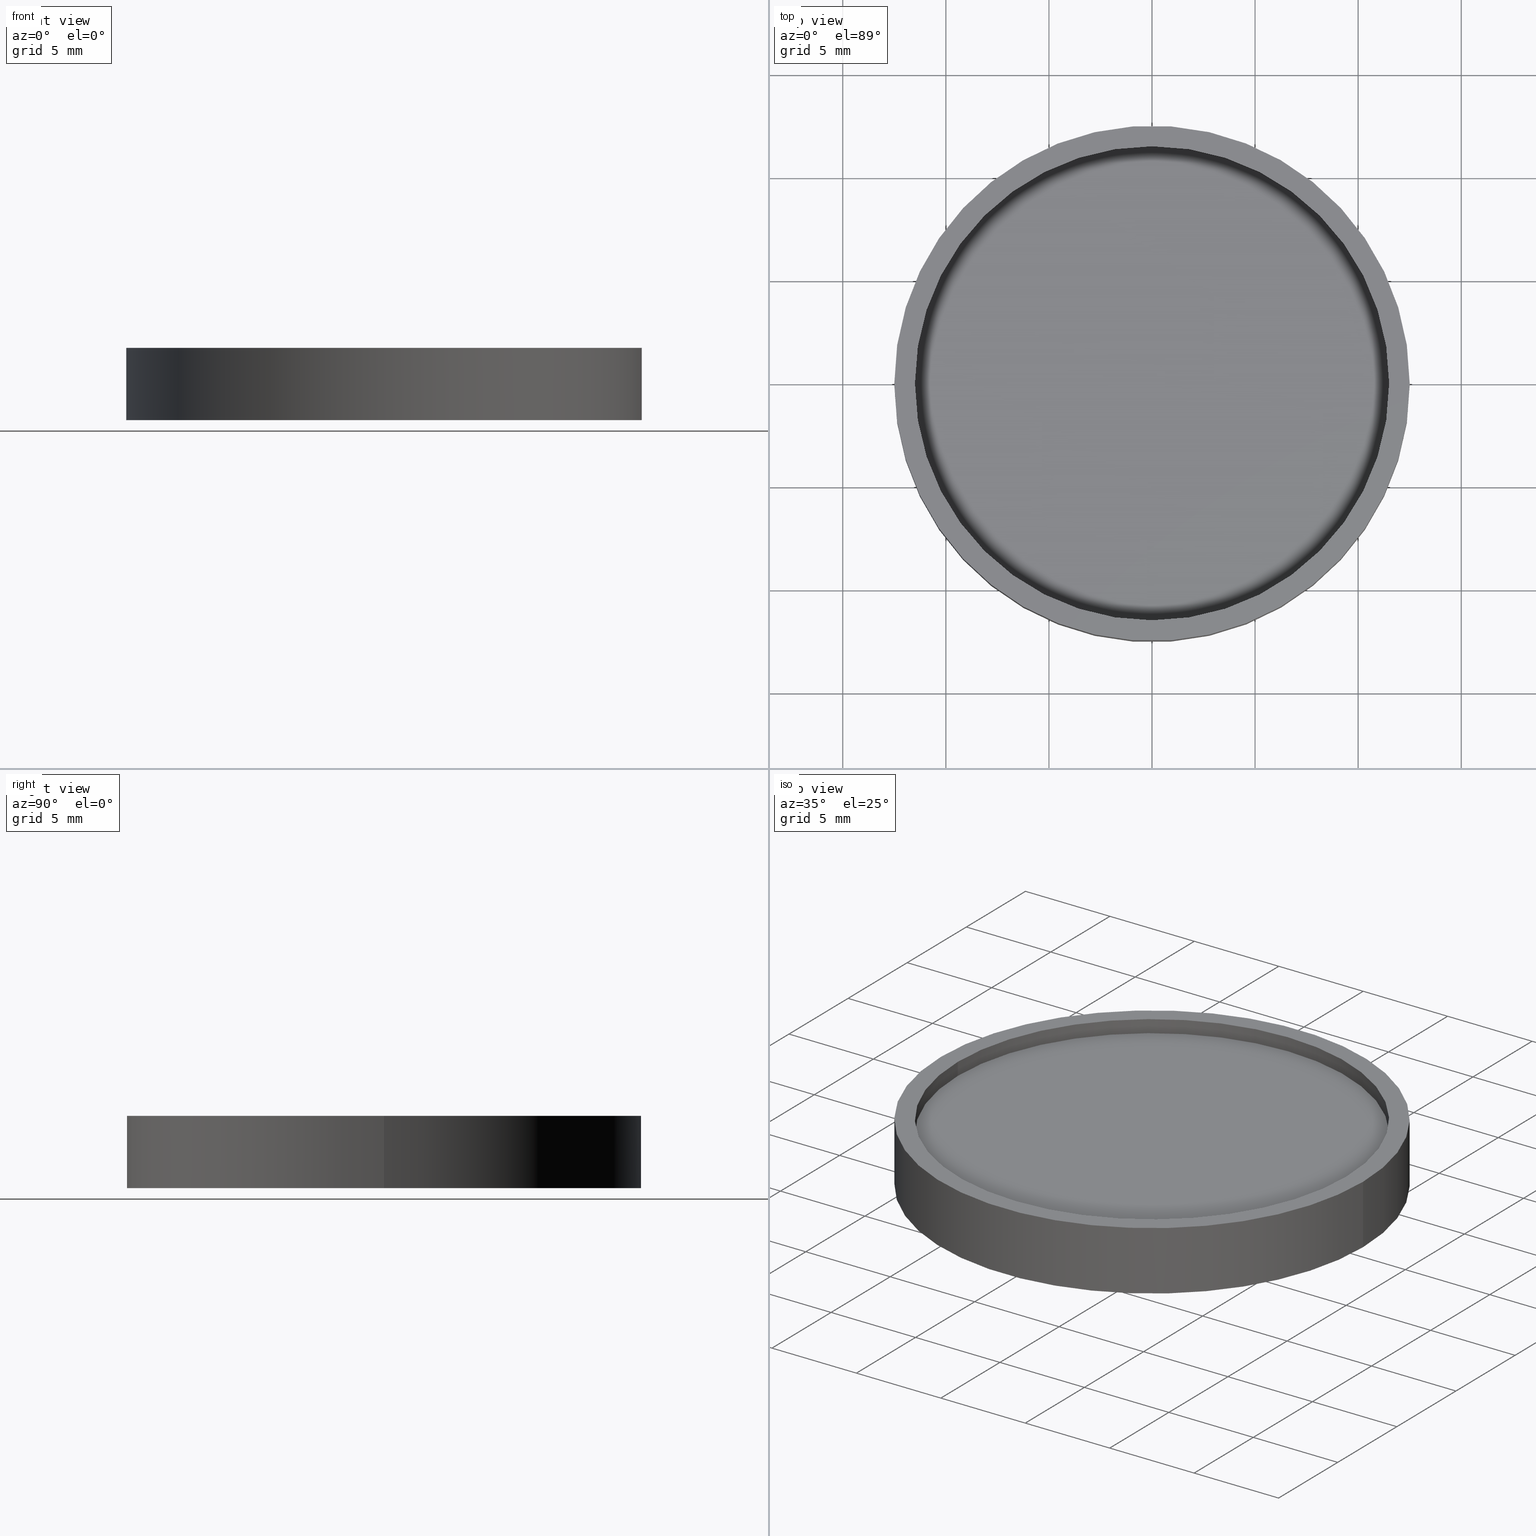
[diagram: canonical four-view strip — front | top / right | iso, engineering-drawing reading convention]
A machine part, canonical four-view strip (front | top / right | iso — engineering-drawing reading convention). The complete STEP part file that produces these views, byte-faithful:
ISO-10303-21;
HEADER;
FILE_DESCRIPTION (( 'STEP AP214' ),
    '1' );
FILE_NAME ('GNIF-045-535-D25.STEP',
    '2024-08-13T06:42:11',
    ( 'Windows User' ),
    ( 'P R C' ),
    'SwSTEP 2.0',
    'SolidWorks 2022',
    '' );
FILE_SCHEMA (( 'AUTOMOTIVE_DESIGN' ));
ENDSEC;

DATA;
#1 = EDGE_CURVE ( 'NONE', #127, #340, #187, .T. ) ;
#2 = AXIS2_PLACEMENT_3D ( 'NONE', #262, #266, #101 ) ;
#3 = CYLINDRICAL_SURFACE ( 'NONE', #248, 12.50000000000000000 ) ;
#4 =( GEOMETRIC_REPRESENTATION_CONTEXT ( 3 ) GLOBAL_UNCERTAINTY_ASSIGNED_CONTEXT ( ( #393 ) ) GLOBAL_UNIT_ASSIGNED_CONTEXT ( ( #354, #299, #359 ) ) REPRESENTATION_CONTEXT ( 'NONE', 'WORKASPACE' ) );
#5 = SURFACE_STYLE_FILL_AREA ( #357 ) ;
#6 = SURFACE_STYLE_FILL_AREA ( #325 ) ;
#7 = CIRCLE ( 'NONE', #52, 11.50000000000000000 ) ;
#8 = AXIS2_PLACEMENT_3D ( 'NONE', #204, #136, #351 ) ;
#9 =( NAMED_UNIT ( * ) PLANE_ANGLE_UNIT ( ) SI_UNIT ( $, .RADIAN. ) );
#10 = SURFACE_STYLE_FILL_AREA ( #46 ) ;
#11 = PRODUCT_DEFINITION_CONTEXT ( 'detailed design', #419, 'design' ) ;
#12 = FACE_BOUND ( 'NONE', #349, .T. ) ;
#13 = PRESENTATION_LAYER_ASSIGNMENT (  '', '', ( #143 ) ) ;
#14 = SURFACE_SIDE_STYLE ('',( #120 ) ) ;
#15 = MECHANICAL_DESIGN_GEOMETRIC_PRESENTATION_REPRESENTATION (  '', ( #356 ), #132 ) ;
#16 = DIRECTION ( 'NONE',  ( 1.000000000000000000, 0.000000000000000000, 0.000000000000000000 ) ) ;
#17 = DIRECTION ( 'NONE',  ( 1.000000000000000000, 0.000000000000000000, 0.000000000000000000 ) ) ;
#18 = EDGE_CURVE ( 'NONE', #105, #344, #168, .T. ) ;
#19 = CARTESIAN_POINT ( 'NONE',  ( 0.000000000000000000, 0.000000000000000000, 3.500000000000000000 ) ) ;
#20 = COLOUR_RGB ( '',1.000000000000000000, 1.000000000000000000, 1.000000000000000000 ) ;
#21 =( LENGTH_UNIT ( ) NAMED_UNIT ( * ) SI_UNIT ( .MILLI., .METRE. ) );
#22 = SURFACE_SIDE_STYLE ('',( #10 ) ) ;
#23 = APPLICATION_PROTOCOL_DEFINITION ( 'draft international standard', 'automotive_design', 1998, #114 ) ;
#24 = AXIS2_PLACEMENT_3D ( 'NONE', #45, #40, #133 ) ;
#25 = ORIENTED_EDGE ( 'NONE', *, *, #75, .T. ) ;
#26 = VECTOR ( 'NONE', #238, 1000.000000000000000 ) ;
#27 = ORIENTED_EDGE ( 'NONE', *, *, #32, .T. ) ;
#28 = CARTESIAN_POINT ( 'NONE',  ( 0.000000000000000000, 0.000000000000000000, 2.750000000000000000 ) ) ;
#29 = ORIENTED_EDGE ( 'NONE', *, *, #106, .T. ) ;
#30 = DIRECTION ( 'NONE',  ( 0.000000000000000000, 0.000000000000000000, 1.000000000000000000 ) ) ;
#31 = CARTESIAN_POINT ( 'NONE',  ( -12.50000000000000000, 0.000000000000000000, 3.500000000000000000 ) ) ;
#32 = EDGE_CURVE ( 'NONE', #344, #105, #148, .T. ) ;
#33 = VECTOR ( 'NONE', #306, 1000.000000000000000 ) ;
#34 = MECHANICAL_DESIGN_GEOMETRIC_PRESENTATION_REPRESENTATION (  '', ( #263 ), #270 ) ;
#35 = SURFACE_STYLE_USAGE ( .BOTH. , #192 ) ;
#36 = PLANE ( 'NONE',  #165 ) ;
#37 = MECHANICAL_DESIGN_GEOMETRIC_PRESENTATION_REPRESENTATION (  '', ( #143 ), #260 ) ;
#38 = PRODUCT_RELATED_PRODUCT_CATEGORY ( 'part', '', ( #342 ) ) ;
#39 = AXIS2_PLACEMENT_3D ( 'NONE', #278, #157, #282 ) ;
#40 = DIRECTION ( 'NONE',  ( 0.000000000000000000, 0.000000000000000000, -1.000000000000000000 ) ) ;
#41 = SURFACE_STYLE_USAGE ( .BOTH. , #391 ) ;
#42 = CARTESIAN_POINT ( 'NONE',  ( 0.000000000000000000, 0.000000000000000000, 2.750000000000000000 ) ) ;
#43 = CARTESIAN_POINT ( 'NONE',  ( -12.25000000000000711, 0.000000000000000000, 0.000000000000000000 ) ) ;
#44 =( LENGTH_UNIT ( ) NAMED_UNIT ( * ) SI_UNIT ( .MILLI., .METRE. ) );
#45 = CARTESIAN_POINT ( 'NONE',  ( 0.000000000000000000, 0.000000000000000000, 0.7500000000000000000 ) ) ;
#46 = FILL_AREA_STYLE ('',( #304 ) ) ;
#47 = UNCERTAINTY_MEASURE_WITH_UNIT (LENGTH_MEASURE( 1.000000000000000082E-05 ), #180, 'distance_accuracy_value', 'NONE');
#48 = FILL_AREA_STYLE_COLOUR ( '', #20 ) ;
#49 = DIRECTION ( 'NONE',  ( 1.000000000000000000, 0.000000000000000000, 0.000000000000000000 ) ) ;
#50 = SHAPE_DEFINITION_REPRESENTATION ( #169, #130 ) ;
#51 = UNCERTAINTY_MEASURE_WITH_UNIT (LENGTH_MEASURE( 1.000000000000000082E-05 ), #347, 'distance_accuracy_value', 'NONE');
#52 = AXIS2_PLACEMENT_3D ( 'NONE', #280, #364, #240 ) ;
#53 =( NAMED_UNIT ( * ) PLANE_ANGLE_UNIT ( ) SI_UNIT ( $, .RADIAN. ) );
#54 =( LENGTH_UNIT ( ) NAMED_UNIT ( * ) SI_UNIT ( .MILLI., .METRE. ) );
#55 = VERTEX_POINT ( 'NONE', #109 ) ;
#56 = AXIS2_PLACEMENT_3D ( 'NONE', #63, #30, #412 ) ;
#57 = DIRECTION ( 'NONE',  ( 1.000000000000000000, 0.000000000000000000, -0.000000000000000000 ) ) ;
#58 =( NAMED_UNIT ( * ) PLANE_ANGLE_UNIT ( ) SI_UNIT ( $, .RADIAN. ) );
#59 = ORIENTED_EDGE ( 'NONE', *, *, #383, .T. ) ;
#60 = FACE_OUTER_BOUND ( 'NONE', #249, .T. ) ;
#61 = AXIS2_PLACEMENT_3D ( 'NONE', #265, #103, #328 ) ;
#62 = EDGE_LOOP ( 'NONE', ( #153, #91, #99, #291 ) ) ;
#63 = CARTESIAN_POINT ( 'NONE',  ( 0.000000000000000000, 0.000000000000000000, 0.000000000000000000 ) ) ;
#64 = ORIENTED_EDGE ( 'NONE', *, *, #390, .T. ) ;
#65 = ADVANCED_FACE ( 'NONE', ( #170 ), #228, .F. ) ;
#66 = SURFACE_STYLE_FILL_AREA ( #382 ) ;
#67 = EDGE_LOOP ( 'NONE', ( #72, #159, #222, #409 ) ) ;
#68 = FILL_AREA_STYLE ('',( #283 ) ) ;
#69 = AXIS2_PLACEMENT_3D ( 'NONE', #415, #156, #57 ) ;
#70 = SURFACE_SIDE_STYLE ('',( #5 ) ) ;
#71 = DIRECTION ( 'NONE',  ( 0.000000000000000000, 0.000000000000000000, 1.000000000000000000 ) ) ;
#72 = ORIENTED_EDGE ( 'NONE', *, *, #75, .F. ) ;
#73 = EDGE_LOOP ( 'NONE', ( #29, #97 ) ) ;
#74 = COLOUR_RGB ( '',0.2235294117647058654, 0.2235294117647058654, 0.2235294117647058654 ) ;
#75 = EDGE_CURVE ( 'NONE', #183, #284, #138, .T. ) ;
#76 = CARTESIAN_POINT ( 'NONE',  ( 12.25000000000000711, 1.500192328955508523E-15, 0.000000000000000000 ) ) ;
#77 = AXIS2_PLACEMENT_3D ( 'NONE', #172, #112, #205 ) ;
#78 = UNCERTAINTY_MEASURE_WITH_UNIT (LENGTH_MEASURE( 1.000000000000000082E-05 ), #104, 'distance_accuracy_value', 'NONE');
#79 = CARTESIAN_POINT ( 'NONE',  ( -11.50000000000000000, 0.000000000000000000, 0.7500000000000093259 ) ) ;
#80 = LINE ( 'NONE', #208, #33 ) ;
#81 = DIRECTION ( 'NONE',  ( 0.000000000000000000, 0.000000000000000000, -1.000000000000000000 ) ) ;
#82 = DIRECTION ( 'NONE',  ( -1.000000000000000000, 0.000000000000000000, 0.000000000000000000 ) ) ;
#83 = PRODUCT_CONTEXT ( 'NONE', #114, 'mechanical' ) ;
#84 = PRESENTATION_STYLE_ASSIGNMENT (( #369 ) ) ;
#85 =( NAMED_UNIT ( * ) SI_UNIT ( $, .STERADIAN. ) SOLID_ANGLE_UNIT ( ) );
#86 = FACE_OUTER_BOUND ( 'NONE', #93, .T. ) ;
#87 =( GEOMETRIC_REPRESENTATION_CONTEXT ( 3 ) GLOBAL_UNCERTAINTY_ASSIGNED_CONTEXT ( ( #399 ) ) GLOBAL_UNIT_ASSIGNED_CONTEXT ( ( #21, #175, #400 ) ) REPRESENTATION_CONTEXT ( 'NONE', 'WORKASPACE' ) );
#88 = PRESENTATION_LAYER_ASSIGNMENT (  '', '', ( #255 ) ) ;
#89 = MECHANICAL_DESIGN_GEOMETRIC_PRESENTATION_REPRESENTATION (  '', ( #300 ), #229 ) ;
#90 = DIRECTION ( 'NONE',  ( 0.000000000000000000, 0.000000000000000000, 1.000000000000000000 ) ) ;
#91 = ORIENTED_EDGE ( 'NONE', *, *, #178, .T. ) ;
#92 = DIRECTION ( 'NONE',  ( 0.000000000000000000, 0.000000000000000000, -1.000000000000000000 ) ) ;
#93 = EDGE_LOOP ( 'NONE', ( #131, #191, #406, #124 ) ) ;
#94 = COLOUR_RGB ( '',0.2235294117647058654, 0.2235294117647058654, 0.2235294117647058654 ) ;
#95 = DIRECTION ( 'NONE',  ( 1.000000000000000000, 0.000000000000000000, -0.000000000000000000 ) ) ;
#96 = PRESENTATION_LAYER_ASSIGNMENT (  '', '', ( #195 ) ) ;
#97 = ORIENTED_EDGE ( 'NONE', *, *, #358, .T. ) ;
#98 = PLANE ( 'NONE',  #77 ) ;
#99 = ORIENTED_EDGE ( 'NONE', *, *, #32, .F. ) ;
#100 = LINE ( 'NONE', #394, #218 ) ;
#101 = DIRECTION ( 'NONE',  ( 1.000000000000000000, 0.000000000000000000, 0.000000000000000000 ) ) ;
#102 = DIRECTION ( 'NONE',  ( -0.000000000000000000, -0.000000000000000000, 1.000000000000000000 ) ) ;
#103 = DIRECTION ( 'NONE',  ( 0.000000000000000000, 0.000000000000000000, 1.000000000000000000 ) ) ;
#104 =( LENGTH_UNIT ( ) NAMED_UNIT ( * ) SI_UNIT ( .MILLI., .METRE. ) );
#105 = VERTEX_POINT ( 'NONE', #76 ) ;
#106 = EDGE_CURVE ( 'NONE', #185, #183, #279, .T. ) ;
#107 = AXIS2_PLACEMENT_3D ( 'NONE', #152, #216, #16 ) ;
#108 = MECHANICAL_DESIGN_GEOMETRIC_PRESENTATION_REPRESENTATION (  '', ( #255 ), #268 ) ;
#109 = CARTESIAN_POINT ( 'NONE',  ( 11.50000000000000000, 1.454268073987482448E-15, 0.7500000000000000000 ) ) ;
#110 =( NAMED_UNIT ( * ) SI_UNIT ( $, .STERADIAN. ) SOLID_ANGLE_UNIT ( ) );
#111 = AXIS2_PLACEMENT_3D ( 'NONE', #140, #160, #363 ) ;
#112 = DIRECTION ( 'NONE',  ( 0.000000000000000000, 0.000000000000000000, -1.000000000000000000 ) ) ;
#113 = COLOUR_RGB ( '',1.000000000000000000, 1.000000000000000000, 1.000000000000000000 ) ;
#114 = APPLICATION_CONTEXT ( 'automotive_design' ) ;
#115 = FACE_OUTER_BOUND ( 'NONE', #129, .T. ) ;
#116 = DIRECTION ( 'NONE',  ( -1.000000000000000000, 0.000000000000000000, 0.000000000000000000 ) ) ;
#117 = FILL_AREA_STYLE ('',( #408 ) ) ;
#118 = PRESENTATION_STYLE_ASSIGNMENT (( #141 ) ) ;
#119 =( NAMED_UNIT ( * ) PLANE_ANGLE_UNIT ( ) SI_UNIT ( $, .RADIAN. ) );
#120 = SURFACE_STYLE_FILL_AREA ( #243 ) ;
#121 = ADVANCED_FACE ( 'NONE', ( #232 ), #3, .T. ) ;
#122 = FILL_AREA_STYLE_COLOUR ( '', #128 ) ;
#123 = AXIS2_PLACEMENT_3D ( 'NONE', #361, #271, #230 ) ;
#124 = ORIENTED_EDGE ( 'NONE', *, *, #161, .T. ) ;
#125 = ORIENTED_EDGE ( 'NONE', *, *, #327, .T. ) ;
#126 = DIRECTION ( 'NONE',  ( 0.000000000000000000, 0.000000000000000000, 1.000000000000000000 ) ) ;
#127 = VERTEX_POINT ( 'NONE', #245 ) ;
#128 = COLOUR_RGB ( '',0.2235294117647058654, 0.2235294117647058654, 0.2235294117647058654 ) ;
#129 = EDGE_LOOP ( 'NONE', ( #190, #320, #125, #289 ) ) ;
#130 = ADVANCED_BREP_SHAPE_REPRESENTATION ( 'GNIF-045-535-D25', ( #387, #107 ), #203 ) ;
#131 = ORIENTED_EDGE ( 'NONE', *, *, #314, .F. ) ;
#132 =( GEOMETRIC_REPRESENTATION_CONTEXT ( 3 ) GLOBAL_UNCERTAINTY_ASSIGNED_CONTEXT ( ( #78 ) ) GLOBAL_UNIT_ASSIGNED_CONTEXT ( ( #104, #58, #309 ) ) REPRESENTATION_CONTEXT ( 'NONE', 'WORKASPACE' ) );
#133 = DIRECTION ( 'NONE',  ( -1.000000000000000000, 0.000000000000000000, 0.000000000000000000 ) ) ;
#134 = CLOSED_SHELL ( 'NONE', ( #193, #65, #155, #121, #370, #184, #137, #201, #225, #338 ) ) ;
#135 = CARTESIAN_POINT ( 'NONE',  ( 0.000000000000000000, 0.000000000000000000, 0.7500000000000093259 ) ) ;
#136 = DIRECTION ( 'NONE',  ( 0.000000000000000000, 0.000000000000000000, 1.000000000000000000 ) ) ;
#137 = ADVANCED_FACE ( 'NONE', ( #86 ), #310, .F. ) ;
#138 = LINE ( 'NONE', #420, #286 ) ;
#139 = CONICAL_SURFACE ( 'NONE', #145, 11.50000000000000000, 0.7853981633974471688 ) ;
#140 = CARTESIAN_POINT ( 'NONE',  ( 0.000000000000000000, 0.000000000000000000, 2.750000000000000000 ) ) ;
#141 = SURFACE_STYLE_USAGE ( .BOTH. , #22 ) ;
#142 = SURFACE_STYLE_FILL_AREA ( #403 ) ;
#143 = STYLED_ITEM ( 'NONE', ( #332 ), #338 ) ;
#144 = CARTESIAN_POINT ( 'NONE',  ( 11.50000000000000000, 0.000000000000000000, 2.750000000000000000 ) ) ;
#145 = AXIS2_PLACEMENT_3D ( 'NONE', #135, #353, #323 ) ;
#146 = UNCERTAINTY_MEASURE_WITH_UNIT (LENGTH_MEASURE( 1.000000000000000082E-05 ), #54, 'distance_accuracy_value', 'NONE');
#147 = CARTESIAN_POINT ( 'NONE',  ( -11.50000000000000000, 1.408343819019456176E-15, 3.500000000000000000 ) ) ;
#148 = CIRCLE ( 'NONE', #61, 12.25000000000000711 ) ;
#149 = CARTESIAN_POINT ( 'NONE',  ( 0.000000000000000000, 0.000000000000000000, 3.500000000000000000 ) ) ;
#150 = EDGE_CURVE ( 'NONE', #185, #293, #206, .T. ) ;
#151 = DIRECTION ( 'NONE',  ( 1.000000000000000000, 0.000000000000000000, -0.000000000000000000 ) ) ;
#152 = CARTESIAN_POINT ( 'NONE',  ( 0.000000000000000000, 0.000000000000000000, 0.000000000000000000 ) ) ;
#153 = ORIENTED_EDGE ( 'NONE', *, *, #276, .F. ) ;
#154 = EDGE_LOOP ( 'NONE', ( #217, #288 ) ) ;
#155 = ADVANCED_FACE ( 'NONE', ( #368 ), #272, .T. ) ;
#156 = DIRECTION ( 'NONE',  ( 0.000000000000000000, 0.000000000000000000, 1.000000000000000000 ) ) ;
#157 = DIRECTION ( 'NONE',  ( 0.000000000000000000, 0.000000000000000000, 1.000000000000000000 ) ) ;
#158 = VERTEX_POINT ( 'NONE', #147 ) ;
#159 = ORIENTED_EDGE ( 'NONE', *, *, #106, .F. ) ;
#160 = DIRECTION ( 'NONE',  ( 0.000000000000000000, 0.000000000000000000, 1.000000000000000000 ) ) ;
#161 = EDGE_CURVE ( 'NONE', #223, #158, #7, .T. ) ;
#162 = FILL_AREA_STYLE ('',( #166 ) ) ;
#163 = VECTOR ( 'NONE', #417, 1000.000000000000000 ) ;
#164 = PRESENTATION_STYLE_ASSIGNMENT (( #321 ) ) ;
#165 = AXIS2_PLACEMENT_3D ( 'NONE', #149, #287, #151 ) ;
#166 = FILL_AREA_STYLE_COLOUR ( '', #200 ) ;
#167 =( NAMED_UNIT ( * ) PLANE_ANGLE_UNIT ( ) SI_UNIT ( $, .RADIAN. ) );
#168 = CIRCLE ( 'NONE', #2, 12.25000000000000711 ) ;
#169 = PRODUCT_DEFINITION_SHAPE ( 'NONE', 'NONE',  #257 ) ;
#170 = FACE_OUTER_BOUND ( 'NONE', #188, .T. ) ;
#171 = DIRECTION ( 'NONE',  ( 0.000000000000000000, 0.000000000000000000, 1.000000000000000000 ) ) ;
#172 = CARTESIAN_POINT ( 'NONE',  ( 0.000000000000000000, 0.000000000000000000, 0.7500000000000000000 ) ) ;
#173 = STYLED_ITEM ( 'NONE', ( #330 ), #137 ) ;
#174 = DIRECTION ( 'NONE',  ( 1.000000000000000000, 0.000000000000000000, 0.000000000000000000 ) ) ;
#175 =( NAMED_UNIT ( * ) PLANE_ANGLE_UNIT ( ) SI_UNIT ( $, .RADIAN. ) );
#176 = CARTESIAN_POINT ( 'NONE',  ( 0.000000000000000000, 0.000000000000000000, 2.750000000000000000 ) ) ;
#177 = PRESENTATION_LAYER_ASSIGNMENT (  '', '', ( #360 ) ) ;
#178 = EDGE_CURVE ( 'NONE', #55, #105, #80, .T. ) ;
#179 = DIRECTION ( 'NONE',  ( -0.000000000000000000, -0.000000000000000000, 1.000000000000000000 ) ) ;
#180 =( LENGTH_UNIT ( ) NAMED_UNIT ( * ) SI_UNIT ( .MILLI., .METRE. ) );
#181 =( NAMED_UNIT ( * ) PLANE_ANGLE_UNIT ( ) SI_UNIT ( $, .RADIAN. ) );
#182 = AXIS2_PLACEMENT_3D ( 'NONE', #28, #126, #95 ) ;
#183 = VERTEX_POINT ( 'NONE', #398 ) ;
#184 = ADVANCED_FACE ( 'NONE', ( #210, #336 ), #221, .F. ) ;
#185 = VERTEX_POINT ( 'NONE', #31 ) ;
#186 =( NAMED_UNIT ( * ) SI_UNIT ( $, .STERADIAN. ) SOLID_ANGLE_UNIT ( ) );
#187 = CIRCLE ( 'NONE', #326, 11.50000000000000000 ) ;
#188 = EDGE_LOOP ( 'NONE', ( #416, #375, #64, #252 ) ) ;
#189 = PLANE ( 'NONE',  #182 ) ;
#190 = ORIENTED_EDGE ( 'NONE', *, *, #178, .F. ) ;
#191 = ORIENTED_EDGE ( 'NONE', *, *, #1, .F. ) ;
#192 = SURFACE_SIDE_STYLE ('',( #319 ) ) ;
#193 = ADVANCED_FACE ( 'NONE', ( #374 ), #371, .F. ) ;
#194 = COLOUR_RGB ( '',0.2235294117647058654, 0.2235294117647058654, 0.2235294117647058654 ) ;
#195 = STYLED_ITEM ( 'NONE', ( #164 ), #121 ) ;
#196 =( LENGTH_UNIT ( ) NAMED_UNIT ( * ) SI_UNIT ( .MILLI., .METRE. ) );
#197 =( LENGTH_UNIT ( ) NAMED_UNIT ( * ) SI_UNIT ( .MILLI., .METRE. ) );
#198 = SURFACE_STYLE_USAGE ( .BOTH. , #388 ) ;
#199 = VECTOR ( 'NONE', #237, 1000.000000000000000 ) ;
#200 = COLOUR_RGB ( '',0.2235294117647058654, 0.2235294117647058654, 0.2235294117647058654 ) ;
#201 = ADVANCED_FACE ( 'NONE', ( #60 ), #189, .T. ) ;
#202 = FILL_AREA_STYLE_COLOUR ( '', #381 ) ;
#203 =( GEOMETRIC_REPRESENTATION_CONTEXT ( 3 ) GLOBAL_UNCERTAINTY_ASSIGNED_CONTEXT ( ( #47 ) ) GLOBAL_UNIT_ASSIGNED_CONTEXT ( ( #180, #119, #334 ) ) REPRESENTATION_CONTEXT ( 'NONE', 'WORKASPACE' ) );
#204 = CARTESIAN_POINT ( 'NONE',  ( 0.000000000000000000, 0.000000000000000000, 3.500000000000000000 ) ) ;
#205 = DIRECTION ( 'NONE',  ( -1.000000000000000000, 0.000000000000000000, -0.000000000000000000 ) ) ;
#206 = LINE ( 'NONE', #215, #26 ) ;
#207 = SURFACE_SIDE_STYLE ('',( #209 ) ) ;
#208 = CARTESIAN_POINT ( 'NONE',  ( 11.50000000000000000, 1.408343819019456176E-15, 0.7500000000000093259 ) ) ;
#209 = SURFACE_STYLE_FILL_AREA ( #261 ) ;
#210 = FACE_BOUND ( 'NONE', #348, .T. ) ;
#211 = EDGE_CURVE ( 'NONE', #293, #284, #235, .T. ) ;
#212 = SURFACE_STYLE_USAGE ( .BOTH. , #14 ) ;
#213 = UNCERTAINTY_MEASURE_WITH_UNIT (LENGTH_MEASURE( 1.000000000000000082E-05 ), #337, 'distance_accuracy_value', 'NONE');
#214 = PRESENTATION_STYLE_ASSIGNMENT (( #281 ) ) ;
#215 = CARTESIAN_POINT ( 'NONE',  ( -12.50000000000000000, 0.000000000000000000, 3.500000000000000000 ) ) ;
#216 = DIRECTION ( 'NONE',  ( 0.000000000000000000, 0.000000000000000000, 1.000000000000000000 ) ) ;
#217 = ORIENTED_EDGE ( 'NONE', *, *, #211, .F. ) ;
#218 = VECTOR ( 'NONE', #102, 1000.000000000000000 ) ;
#219 = ORIENTED_EDGE ( 'NONE', *, *, #161, .F. ) ;
#220 = CIRCLE ( 'NONE', #39, 11.50000000000000000 ) ;
#221 = PLANE ( 'NONE',  #69 ) ;
#222 = ORIENTED_EDGE ( 'NONE', *, *, #150, .T. ) ;
#223 = VERTEX_POINT ( 'NONE', #254 ) ;
#224 = ORIENTED_EDGE ( 'NONE', *, *, #276, .T. ) ;
#225 = ADVANCED_FACE ( 'NONE', ( #380 ), #98, .T. ) ;
#226 = SURFACE_STYLE_USAGE ( .BOTH. , #378 ) ;
#227 = DIRECTION ( 'NONE',  ( -1.000000000000000000, 0.000000000000000000, 0.000000000000000000 ) ) ;
#228 = CYLINDRICAL_SURFACE ( 'NONE', #123, 11.50000000000000000 ) ;
#229 =( GEOMETRIC_REPRESENTATION_CONTEXT ( 3 ) GLOBAL_UNCERTAINTY_ASSIGNED_CONTEXT ( ( #273 ) ) GLOBAL_UNIT_ASSIGNED_CONTEXT ( ( #197, #167, #297 ) ) REPRESENTATION_CONTEXT ( 'NONE', 'WORKASPACE' ) );
#230 = DIRECTION ( 'NONE',  ( 1.000000000000000000, 0.000000000000000000, 0.000000000000000000 ) ) ;
#231 = CARTESIAN_POINT ( 'NONE',  ( 12.50000000000000000, 1.530808498934191521E-15, 0.000000000000000000 ) ) ;
#232 = FACE_OUTER_BOUND ( 'NONE', #67, .T. ) ;
#233 = STYLED_ITEM ( 'NONE', ( #214 ), #130 ) ;
#234 = EDGE_CURVE ( 'NONE', #250, #55, #295, .T. ) ;
#235 = CIRCLE ( 'NONE', #56, 12.50000000000000000 ) ;
#236 =( GEOMETRIC_REPRESENTATION_CONTEXT ( 3 ) GLOBAL_UNCERTAINTY_ASSIGNED_CONTEXT ( ( #213 ) ) GLOBAL_UNIT_ASSIGNED_CONTEXT ( ( #337, #53, #345 ) ) REPRESENTATION_CONTEXT ( 'NONE', 'WORKASPACE' ) );
#237 = DIRECTION ( 'NONE',  ( -0.000000000000000000, -0.000000000000000000, 1.000000000000000000 ) ) ;
#238 = DIRECTION ( 'NONE',  ( -0.000000000000000000, -0.000000000000000000, -1.000000000000000000 ) ) ;
#239 = PRESENTATION_LAYER_ASSIGNMENT (  '', '', ( #173 ) ) ;
#240 = DIRECTION ( 'NONE',  ( 1.000000000000000000, 0.000000000000000000, 0.000000000000000000 ) ) ;
#241 = SURFACE_SIDE_STYLE ('',( #142 ) ) ;
#242 = SURFACE_STYLE_FILL_AREA ( #117 ) ;
#243 = FILL_AREA_STYLE ('',( #404 ) ) ;
#244 = SURFACE_SIDE_STYLE ('',( #242 ) ) ;
#245 = CARTESIAN_POINT ( 'NONE',  ( 11.50000000000000000, 0.000000000000000000, 2.750000000000000000 ) ) ;
#246 =( GEOMETRIC_REPRESENTATION_CONTEXT ( 3 ) GLOBAL_UNCERTAINTY_ASSIGNED_CONTEXT ( ( #51 ) ) GLOBAL_UNIT_ASSIGNED_CONTEXT ( ( #347, #405, #186 ) ) REPRESENTATION_CONTEXT ( 'NONE', 'WORKASPACE' ) );
#247 = PRESENTATION_STYLE_ASSIGNMENT (( #35 ) ) ;
#248 = AXIS2_PLACEMENT_3D ( 'NONE', #402, #312, #116 ) ;
#249 = EDGE_LOOP ( 'NONE', ( #377, #379 ) ) ;
#250 = VERTEX_POINT ( 'NONE', #366 ) ;
#251 = CIRCLE ( 'NONE', #274, 12.50000000000000000 ) ;
#252 = ORIENTED_EDGE ( 'NONE', *, *, #302, .F. ) ;
#253 = MECHANICAL_DESIGN_GEOMETRIC_PRESENTATION_REPRESENTATION (  '', ( #233 ), #87 ) ;
#254 = CARTESIAN_POINT ( 'NONE',  ( 11.50000000000000000, 0.000000000000000000, 3.500000000000000000 ) ) ;
#255 = STYLED_ITEM ( 'NONE', ( #247 ), #193 ) ;
#256 = COLOUR_RGB ( '',0.2235294117647058654, 0.2235294117647058654, 0.2235294117647058654 ) ;
#257 = PRODUCT_DEFINITION ( 'δ֪', '', #277, #11 ) ;
#258 = ORIENTED_EDGE ( 'NONE', *, *, #390, .F. ) ;
#259 = PRESENTATION_STYLE_ASSIGNMENT (( #226 ) ) ;
#260 =( GEOMETRIC_REPRESENTATION_CONTEXT ( 3 ) GLOBAL_UNCERTAINTY_ASSIGNED_CONTEXT ( ( #307 ) ) GLOBAL_UNIT_ASSIGNED_CONTEXT ( ( #196, #9, #294 ) ) REPRESENTATION_CONTEXT ( 'NONE', 'WORKASPACE' ) );
#261 = FILL_AREA_STYLE ('',( #296 ) ) ;
#262 = CARTESIAN_POINT ( 'NONE',  ( 0.000000000000000000, 0.000000000000000000, 0.000000000000000000 ) ) ;
#263 = STYLED_ITEM ( 'NONE', ( #118 ), #155 ) ;
#264 = FACE_OUTER_BOUND ( 'NONE', #73, .T. ) ;
#265 = CARTESIAN_POINT ( 'NONE',  ( 0.000000000000000000, 0.000000000000000000, 0.000000000000000000 ) ) ;
#266 = DIRECTION ( 'NONE',  ( 0.000000000000000000, 0.000000000000000000, 1.000000000000000000 ) ) ;
#267 = DIRECTION ( 'NONE',  ( -0.000000000000000000, -0.000000000000000000, -1.000000000000000000 ) ) ;
#268 =( GEOMETRIC_REPRESENTATION_CONTEXT ( 3 ) GLOBAL_UNCERTAINTY_ASSIGNED_CONTEXT ( ( #331 ) ) GLOBAL_UNIT_ASSIGNED_CONTEXT ( ( #290, #315, #407 ) ) REPRESENTATION_CONTEXT ( 'NONE', 'WORKASPACE' ) );
#269 = EDGE_CURVE ( 'NONE', #340, #127, #322, .T. ) ;
#270 =( GEOMETRIC_REPRESENTATION_CONTEXT ( 3 ) GLOBAL_UNCERTAINTY_ASSIGNED_CONTEXT ( ( #146 ) ) GLOBAL_UNIT_ASSIGNED_CONTEXT ( ( #54, #333, #110 ) ) REPRESENTATION_CONTEXT ( 'NONE', 'WORKASPACE' ) );
#271 = DIRECTION ( 'NONE',  ( -0.000000000000000000, -0.000000000000000000, 1.000000000000000000 ) ) ;
#272 = CYLINDRICAL_SURFACE ( 'NONE', #392, 12.50000000000000000 ) ;
#273 = UNCERTAINTY_MEASURE_WITH_UNIT (LENGTH_MEASURE( 1.000000000000000082E-05 ), #197, 'distance_accuracy_value', 'NONE');
#274 = AXIS2_PLACEMENT_3D ( 'NONE', #316, #90, #17 ) ;
#275 = CARTESIAN_POINT ( 'NONE',  ( 0.000000000000000000, 0.000000000000000000, 3.500000000000000000 ) ) ;
#276 = EDGE_CURVE ( 'NONE', #55, #250, #341, .T. ) ;
#277 = PRODUCT_DEFINITION_FORMATION_WITH_SPECIFIED_SOURCE ( '�κ�', '', #342, .NOT_KNOWN. ) ;
#278 = CARTESIAN_POINT ( 'NONE',  ( 0.000000000000000000, 0.000000000000000000, 3.500000000000000000 ) ) ;
#279 = CIRCLE ( 'NONE', #8, 12.50000000000000000 ) ;
#280 = CARTESIAN_POINT ( 'NONE',  ( 0.000000000000000000, 0.000000000000000000, 3.500000000000000000 ) ) ;
#281 = SURFACE_STYLE_USAGE ( .BOTH. , #241 ) ;
#282 = DIRECTION ( 'NONE',  ( 1.000000000000000000, 0.000000000000000000, 0.000000000000000000 ) ) ;
#283 = FILL_AREA_STYLE_COLOUR ( '', #194 ) ;
#284 = VERTEX_POINT ( 'NONE', #231 ) ;
#285 = DIRECTION ( 'NONE',  ( -1.000000000000000000, 0.000000000000000000, 0.000000000000000000 ) ) ;
#286 = VECTOR ( 'NONE', #267, 1000.000000000000000 ) ;
#287 = DIRECTION ( 'NONE',  ( 0.000000000000000000, 0.000000000000000000, 1.000000000000000000 ) ) ;
#288 = ORIENTED_EDGE ( 'NONE', *, *, #383, .F. ) ;
#289 = ORIENTED_EDGE ( 'NONE', *, *, #18, .F. ) ;
#290 =( LENGTH_UNIT ( ) NAMED_UNIT ( * ) SI_UNIT ( .MILLI., .METRE. ) );
#291 = ORIENTED_EDGE ( 'NONE', *, *, #327, .F. ) ;
#292 = PRESENTATION_LAYER_ASSIGNMENT (  '', '', ( #233 ) ) ;
#293 = VERTEX_POINT ( 'NONE', #350 ) ;
#294 =( NAMED_UNIT ( * ) SI_UNIT ( $, .STERADIAN. ) SOLID_ANGLE_UNIT ( ) );
#295 = CIRCLE ( 'NONE', #395, 11.50000000000000000 ) ;
#296 = FILL_AREA_STYLE_COLOUR ( '', #94 ) ;
#297 =( NAMED_UNIT ( * ) SI_UNIT ( $, .STERADIAN. ) SOLID_ANGLE_UNIT ( ) );
#298 = PRESENTATION_STYLE_ASSIGNMENT (( #198 ) ) ;
#299 =( NAMED_UNIT ( * ) PLANE_ANGLE_UNIT ( ) SI_UNIT ( $, .RADIAN. ) );
#300 = STYLED_ITEM ( 'NONE', ( #389 ), #65 ) ;
#301 = DIRECTION ( 'NONE',  ( 1.000000000000000000, 0.000000000000000000, 0.000000000000000000 ) ) ;
#302 = EDGE_CURVE ( 'NONE', #127, #223, #305, .T. ) ;
#303 = COLOUR_RGB ( '',0.2235294117647058654, 0.2235294117647058654, 0.2235294117647058654 ) ;
#304 = FILL_AREA_STYLE_COLOUR ( '', #303 ) ;
#305 = LINE ( 'NONE', #144, #199 ) ;
#306 = DIRECTION ( 'NONE',  ( 0.7071067811865467956, 8.659560562354925463E-17, -0.7071067811865483499 ) ) ;
#307 = UNCERTAINTY_MEASURE_WITH_UNIT (LENGTH_MEASURE( 1.000000000000000082E-05 ), #196, 'distance_accuracy_value', 'NONE');
#308 = STYLED_ITEM ( 'NONE', ( #84 ), #387 ) ;
#309 =( NAMED_UNIT ( * ) SI_UNIT ( $, .STERADIAN. ) SOLID_ANGLE_UNIT ( ) );
#310 = CYLINDRICAL_SURFACE ( 'NONE', #367, 11.50000000000000000 ) ;
#311 =( GEOMETRIC_REPRESENTATION_CONTEXT ( 3 ) GLOBAL_UNCERTAINTY_ASSIGNED_CONTEXT ( ( #365 ) ) GLOBAL_UNIT_ASSIGNED_CONTEXT ( ( #44, #181, #85 ) ) REPRESENTATION_CONTEXT ( 'NONE', 'WORKASPACE' ) );
#312 = DIRECTION ( 'NONE',  ( -0.000000000000000000, -0.000000000000000000, -1.000000000000000000 ) ) ;
#313 = AXIS2_PLACEMENT_3D ( 'NONE', #410, #92, #285 ) ;
#314 = EDGE_CURVE ( 'NONE', #340, #158, #100, .T. ) ;
#315 =( NAMED_UNIT ( * ) PLANE_ANGLE_UNIT ( ) SI_UNIT ( $, .RADIAN. ) );
#316 = CARTESIAN_POINT ( 'NONE',  ( 0.000000000000000000, 0.000000000000000000, 0.000000000000000000 ) ) ;
#317 = ORIENTED_EDGE ( 'NONE', *, *, #358, .F. ) ;
#318 = ORIENTED_EDGE ( 'NONE', *, *, #150, .F. ) ;
#319 = SURFACE_STYLE_FILL_AREA ( #68 ) ;
#320 = ORIENTED_EDGE ( 'NONE', *, *, #234, .F. ) ;
#321 = SURFACE_STYLE_USAGE ( .BOTH. , #70 ) ;
#322 = CIRCLE ( 'NONE', #111, 11.50000000000000000 ) ;
#323 = DIRECTION ( 'NONE',  ( -1.000000000000000000, 0.000000000000000000, 0.000000000000000000 ) ) ;
#324 = CIRCLE ( 'NONE', #376, 12.50000000000000000 ) ;
#325 = FILL_AREA_STYLE ('',( #202 ) ) ;
#326 = AXIS2_PLACEMENT_3D ( 'NONE', #42, #171, #301 ) ;
#327 = EDGE_CURVE ( 'NONE', #250, #344, #355, .T. ) ;
#328 = DIRECTION ( 'NONE',  ( 1.000000000000000000, 0.000000000000000000, 0.000000000000000000 ) ) ;
#329 = FILL_AREA_STYLE_COLOUR ( '', #256 ) ;
#330 = PRESENTATION_STYLE_ASSIGNMENT (( #212 ) ) ;
#331 = UNCERTAINTY_MEASURE_WITH_UNIT (LENGTH_MEASURE( 1.000000000000000082E-05 ), #290, 'distance_accuracy_value', 'NONE');
#332 = PRESENTATION_STYLE_ASSIGNMENT (( #384 ) ) ;
#333 =( NAMED_UNIT ( * ) PLANE_ANGLE_UNIT ( ) SI_UNIT ( $, .RADIAN. ) );
#334 =( NAMED_UNIT ( * ) SI_UNIT ( $, .STERADIAN. ) SOLID_ANGLE_UNIT ( ) );
#335 = CARTESIAN_POINT ( 'NONE',  ( 0.000000000000000000, 0.000000000000000000, 0.7500000000000000000 ) ) ;
#336 = FACE_OUTER_BOUND ( 'NONE', #154, .T. ) ;
#337 =( LENGTH_UNIT ( ) NAMED_UNIT ( * ) SI_UNIT ( .MILLI., .METRE. ) );
#338 = ADVANCED_FACE ( 'NONE', ( #115 ), #139, .F. ) ;
#339 = APPLICATION_PROTOCOL_DEFINITION ( 'draft international standard', 'automotive_design', 1998, #419 ) ;
#340 = VERTEX_POINT ( 'NONE', #385 ) ;
#341 = CIRCLE ( 'NONE', #24, 11.50000000000000000 ) ;
#342 = PRODUCT ( 'GNIF-045-535-D25', 'GNIF-045-535-D25', '', ( #83 ) ) ;
#343 = MECHANICAL_DESIGN_GEOMETRIC_PRESENTATION_REPRESENTATION (  '', ( #308 ), #236 ) ;
#344 = VERTEX_POINT ( 'NONE', #43 ) ;
#345 =( NAMED_UNIT ( * ) SI_UNIT ( $, .STERADIAN. ) SOLID_ANGLE_UNIT ( ) );
#346 = EDGE_LOOP ( 'NONE', ( #317, #25, #59, #318 ) ) ;
#347 =( LENGTH_UNIT ( ) NAMED_UNIT ( * ) SI_UNIT ( .MILLI., .METRE. ) );
#348 = EDGE_LOOP ( 'NONE', ( #27, #373 ) ) ;
#349 = EDGE_LOOP ( 'NONE', ( #219, #258 ) ) ;
#350 = CARTESIAN_POINT ( 'NONE',  ( -12.50000000000000000, 0.000000000000000000, 0.000000000000000000 ) ) ;
#351 = DIRECTION ( 'NONE',  ( 1.000000000000000000, 0.000000000000000000, 0.000000000000000000 ) ) ;
#352 = MECHANICAL_DESIGN_GEOMETRIC_PRESENTATION_REPRESENTATION (  '', ( #195 ), #4 ) ;
#353 = DIRECTION ( 'NONE',  ( 0.000000000000000000, 0.000000000000000000, -1.000000000000000000 ) ) ;
#354 =( LENGTH_UNIT ( ) NAMED_UNIT ( * ) SI_UNIT ( .MILLI., .METRE. ) );
#355 = LINE ( 'NONE', #79, #163 ) ;
#356 = STYLED_ITEM ( 'NONE', ( #298 ), #370 ) ;
#357 = FILL_AREA_STYLE ('',( #329 ) ) ;
#358 = EDGE_CURVE ( 'NONE', #183, #185, #324, .T. ) ;
#359 =( NAMED_UNIT ( * ) SI_UNIT ( $, .STERADIAN. ) SOLID_ANGLE_UNIT ( ) );
#360 = STYLED_ITEM ( 'NONE', ( #259 ), #184 ) ;
#361 = CARTESIAN_POINT ( 'NONE',  ( 0.000000000000000000, 0.000000000000000000, 2.750000000000000000 ) ) ;
#362 = PRESENTATION_LAYER_ASSIGNMENT (  '', '', ( #308 ) ) ;
#363 = DIRECTION ( 'NONE',  ( 1.000000000000000000, 0.000000000000000000, 0.000000000000000000 ) ) ;
#364 = DIRECTION ( 'NONE',  ( 0.000000000000000000, 0.000000000000000000, 1.000000000000000000 ) ) ;
#365 = UNCERTAINTY_MEASURE_WITH_UNIT (LENGTH_MEASURE( 1.000000000000000082E-05 ), #44, 'distance_accuracy_value', 'NONE');
#366 = CARTESIAN_POINT ( 'NONE',  ( -11.50000000000000000, 0.000000000000000000, 0.7500000000000000000 ) ) ;
#367 = AXIS2_PLACEMENT_3D ( 'NONE', #176, #179, #49 ) ;
#368 = FACE_OUTER_BOUND ( 'NONE', #346, .T. ) ;
#369 = SURFACE_STYLE_USAGE ( .BOTH. , #244 ) ;
#370 = ADVANCED_FACE ( 'NONE', ( #12, #264 ), #36, .T. ) ;
#371 = CONICAL_SURFACE ( 'NONE', #313, 11.50000000000000000, 0.7853981633974471688 ) ;
#372 = PRESENTATION_LAYER_ASSIGNMENT (  '', '', ( #300 ) ) ;
#373 = ORIENTED_EDGE ( 'NONE', *, *, #18, .T. ) ;
#374 = FACE_OUTER_BOUND ( 'NONE', #62, .T. ) ;
#375 = ORIENTED_EDGE ( 'NONE', *, *, #314, .T. ) ;
#376 = AXIS2_PLACEMENT_3D ( 'NONE', #275, #71, #174 ) ;
#377 = ORIENTED_EDGE ( 'NONE', *, *, #1, .T. ) ;
#378 = SURFACE_SIDE_STYLE ('',( #66 ) ) ;
#379 = ORIENTED_EDGE ( 'NONE', *, *, #269, .T. ) ;
#380 = FACE_OUTER_BOUND ( 'NONE', #413, .T. ) ;
#381 = COLOUR_RGB ( '',0.2235294117647058654, 0.2235294117647058654, 0.2235294117647058654 ) ;
#382 = FILL_AREA_STYLE ('',( #122 ) ) ;
#383 = EDGE_CURVE ( 'NONE', #284, #293, #251, .T. ) ;
#384 = SURFACE_STYLE_USAGE ( .BOTH. , #207 ) ;
#385 = CARTESIAN_POINT ( 'NONE',  ( -11.50000000000000000, 1.408343819019456176E-15, 2.750000000000000000 ) ) ;
#386 = MECHANICAL_DESIGN_GEOMETRIC_PRESENTATION_REPRESENTATION (  '', ( #173 ), #311 ) ;
#387 = MANIFOLD_SOLID_BREP ( '����1', #134 ) ;
#388 = SURFACE_SIDE_STYLE ('',( #397 ) ) ;
#389 = PRESENTATION_STYLE_ASSIGNMENT (( #41 ) ) ;
#390 = EDGE_CURVE ( 'NONE', #158, #223, #220, .T. ) ;
#391 = SURFACE_SIDE_STYLE ('',( #6 ) ) ;
#392 = AXIS2_PLACEMENT_3D ( 'NONE', #19, #396, #82 ) ;
#393 = UNCERTAINTY_MEASURE_WITH_UNIT (LENGTH_MEASURE( 1.000000000000000082E-05 ), #354, 'distance_accuracy_value', 'NONE');
#394 = CARTESIAN_POINT ( 'NONE',  ( -11.50000000000000000, 1.408343819019456176E-15, 2.750000000000000000 ) ) ;
#395 = AXIS2_PLACEMENT_3D ( 'NONE', #335, #81, #227 ) ;
#396 = DIRECTION ( 'NONE',  ( -0.000000000000000000, -0.000000000000000000, -1.000000000000000000 ) ) ;
#397 = SURFACE_STYLE_FILL_AREA ( #162 ) ;
#398 = CARTESIAN_POINT ( 'NONE',  ( 12.50000000000000000, 1.530808498934191521E-15, 3.500000000000000000 ) ) ;
#399 = UNCERTAINTY_MEASURE_WITH_UNIT (LENGTH_MEASURE( 1.000000000000000082E-05 ), #21, 'distance_accuracy_value', 'NONE');
#400 =( NAMED_UNIT ( * ) SI_UNIT ( $, .STERADIAN. ) SOLID_ANGLE_UNIT ( ) );
#401 = PRESENTATION_LAYER_ASSIGNMENT (  '', '', ( #263 ) ) ;
#402 = CARTESIAN_POINT ( 'NONE',  ( 0.000000000000000000, 0.000000000000000000, 3.500000000000000000 ) ) ;
#403 = FILL_AREA_STYLE ('',( #48 ) ) ;
#404 = FILL_AREA_STYLE_COLOUR ( '', #74 ) ;
#405 =( NAMED_UNIT ( * ) PLANE_ANGLE_UNIT ( ) SI_UNIT ( $, .RADIAN. ) );
#406 = ORIENTED_EDGE ( 'NONE', *, *, #302, .T. ) ;
#407 =( NAMED_UNIT ( * ) SI_UNIT ( $, .STERADIAN. ) SOLID_ANGLE_UNIT ( ) );
#408 = FILL_AREA_STYLE_COLOUR ( '', #113 ) ;
#409 = ORIENTED_EDGE ( 'NONE', *, *, #211, .T. ) ;
#410 = CARTESIAN_POINT ( 'NONE',  ( 0.000000000000000000, 0.000000000000000000, 0.7500000000000093259 ) ) ;
#411 = ORIENTED_EDGE ( 'NONE', *, *, #234, .T. ) ;
#412 = DIRECTION ( 'NONE',  ( 1.000000000000000000, 0.000000000000000000, 0.000000000000000000 ) ) ;
#413 = EDGE_LOOP ( 'NONE', ( #411, #224 ) ) ;
#414 = MECHANICAL_DESIGN_GEOMETRIC_PRESENTATION_REPRESENTATION (  '', ( #360 ), #246 ) ;
#415 = CARTESIAN_POINT ( 'NONE',  ( 0.000000000000000000, 0.000000000000000000, 0.000000000000000000 ) ) ;
#416 = ORIENTED_EDGE ( 'NONE', *, *, #269, .F. ) ;
#417 = DIRECTION ( 'NONE',  ( -0.7071067811865467956, 0.000000000000000000, -0.7071067811865483499 ) ) ;
#418 = PRESENTATION_LAYER_ASSIGNMENT (  '', '', ( #356 ) ) ;
#419 = APPLICATION_CONTEXT ( 'automotive_design' ) ;
#420 = CARTESIAN_POINT ( 'NONE',  ( 12.50000000000000000, 1.530808498934191521E-15, 3.500000000000000000 ) ) ;
ENDSEC;
END-ISO-10303-21;
